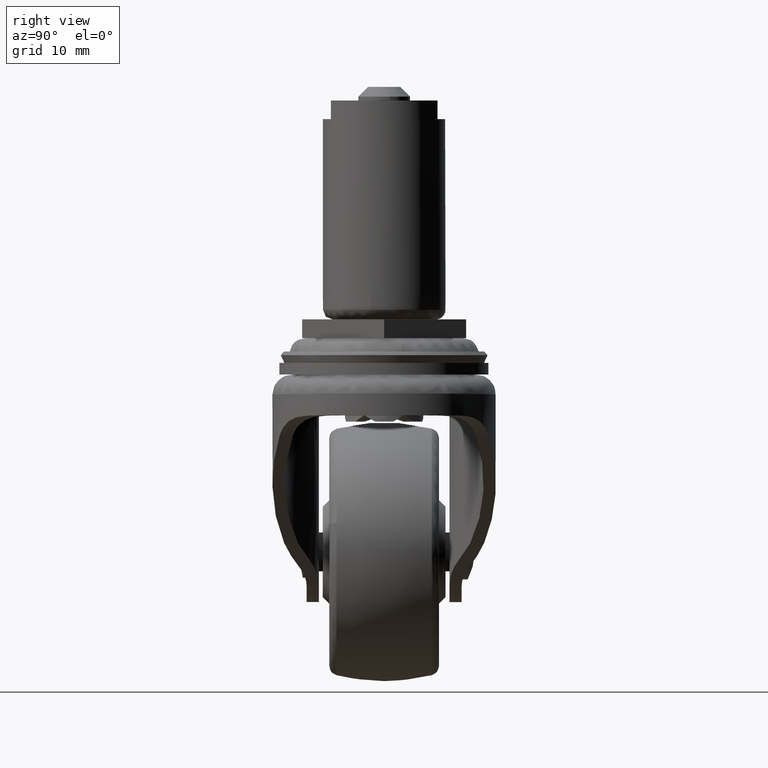
[diagram: clean part render]
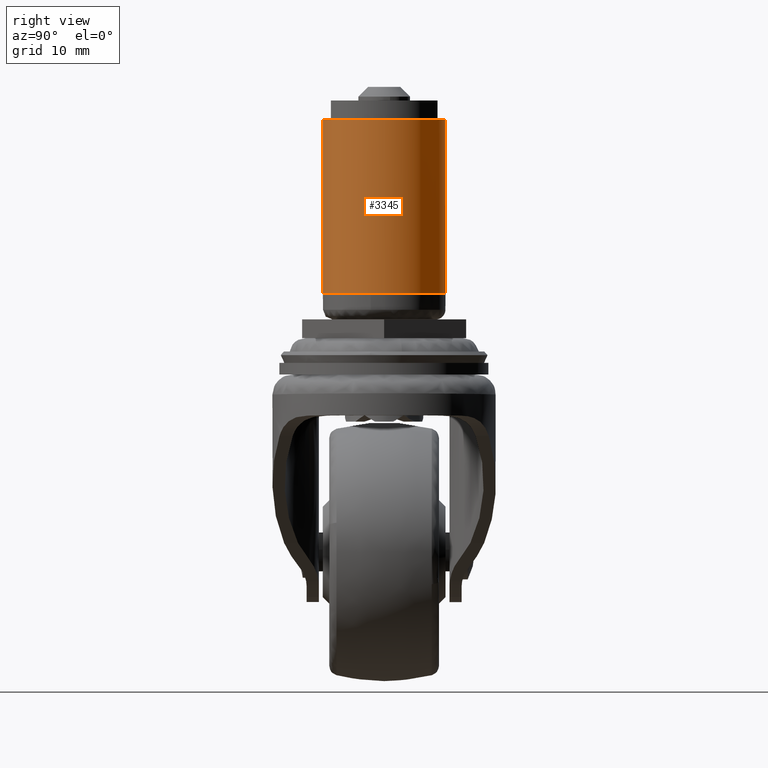
[diagram: same view with one face highlighted and labeled with its STEP entity id]
A machine part, right view. The second image highlights one B-rep face of the part: STEP entity #3345.
In plain terms, the highlighted face is a freeform B-spline surface patch.
Its self-contained STEP definition (entity closure, byte-faithful):
#3243=CARTESIAN_POINT('',(-1.121325229239206,9.433590500454830,31.675000000000011));
#3244=CARTESIAN_POINT('',(-0.851339922060788,9.465682346761753,31.675000000000004));
#3245=CARTESIAN_POINT('',(-0.579961125581141,9.482280585007734,31.675000000000001));
#3246=CARTESIAN_POINT('',(8.902319459426593,10.062241710588875,31.675000000000008));
#3247=CARTESIAN_POINT('',(9.482280585007734,0.579961125581141,31.675000000000001));
#3248=CARTESIAN_POINT('',(10.062241710588875,-8.902319459426593,31.675000000000008));
#3249=CARTESIAN_POINT('',(0.579961125581141,-9.482280585007734,31.675000000000001));
#3250=CARTESIAN_POINT('',(-1.121325229239206,9.433590500454830,3.308125000000000));
#3251=CARTESIAN_POINT('',(-0.851339922060788,9.465682346761753,3.308125000000000));
#3252=CARTESIAN_POINT('',(-0.579961125581141,9.482280585007734,3.308125000000000));
#3253=CARTESIAN_POINT('',(8.902319459426593,10.062241710588875,3.308125000000000));
#3254=CARTESIAN_POINT('',(9.482280585007734,0.579961125581141,3.308125000000000));
#3255=CARTESIAN_POINT('',(10.062241710588875,-8.902319459426593,3.308125000000000));
#3256=CARTESIAN_POINT('',(0.579961125581141,-9.482280585007734,3.308125000000000));
#3264=(BOUNDED_SURFACE()B_SPLINE_SURFACE(2,1,((#3243,#3250),(#3244,#3251),(#3245,#3252),(#3246,#3253),(#3247,#3254),(#3248,#3255),(#3249,#3256)),.UNSPECIFIED.,.F.,.F.,.U.)B_SPLINE_SURFACE_WITH_KNOTS((3,2,2,3),(2,2),(0.0,0.629604614807105,16.369719984984709,32.109835355162318),(0.0,28.366875000000011),.UNSPECIFIED.)GEOMETRIC_REPRESENTATION_ITEM()RATIONAL_B_SPLINE_SURFACE(((0.977505800795127,0.977505800795127),(0.988284271247462,0.988284271247462),(1.0,1.0),(0.707106781186548,0.707106781186548),(1.0,1.0),(0.707106781186548,0.707106781186548),(1.0,1.0)))REPRESENTATION_ITEM('')SURFACE());
#3265=CARTESIAN_POINT('',(-1.121325229317182,9.433590500445563,31.0));
#3266=VERTEX_POINT('',#3265);
#3267=CARTESIAN_POINT('',(9.500000000000000,0.0,31.0));
#3268=VERTEX_POINT('',#3267);
#3269=CARTESIAN_POINT('',(-1.121325229317183,9.433590500445563,30.999999999999996));
#3270=CARTESIAN_POINT('',(-0.562629136771947,9.500000000000002,31.0));
#3271=CARTESIAN_POINT('',(0.0,9.500000000000000,31.0));
#3272=CARTESIAN_POINT('',(9.500000000000000,9.500000000000000,31.000000000000007));
#3273=CARTESIAN_POINT('',(9.500000000000000,0.0,31.0));
#3281=(BOUNDED_CURVE()B_SPLINE_CURVE(2,(#3269,#3270,#3271,#3272,#3273),.UNSPECIFIED.,.F.,.U.)B_SPLINE_CURVE_WITH_KNOTS((3,2,3),(0.229562473512850,0.250000000000000,0.500000000000000),.UNSPECIFIED.)CURVE()GEOMETRIC_REPRESENTATION_ITEM()RATIONAL_B_SPLINE_CURVE((0.956026754182409,0.976055948330374,1.0,0.707106781186548,1.0))REPRESENTATION_ITEM(''));
#3282=EDGE_CURVE('',#3266,#3268,#3281,.T.);
#3283=ORIENTED_EDGE('',*,*,#3282,.T.);
#3284=CARTESIAN_POINT('',(0.579961125677197,-9.482280585001860,31.0));
#3285=VERTEX_POINT('',#3284);
#3286=CARTESIAN_POINT('',(9.500000000000000,0.0,31.0));
#3287=CARTESIAN_POINT('',(9.500000000000000,-8.936707635422685,31.000000000000004));
#3288=CARTESIAN_POINT('',(0.579961125677197,-9.482280585001858,31.0));
#3296=(BOUNDED_CURVE()B_SPLINE_CURVE(2,(#3286,#3287,#3288),.UNSPECIFIED.,.F.,.U.)B_SPLINE_CURVE_WITH_KNOTS((3,3),(0.500000000000000,0.739332962238472),.UNSPECIFIED.)CURVE()GEOMETRIC_REPRESENTATION_ITEM()RATIONAL_B_SPLINE_CURVE((1.0,0.719603993287262,0.976072041665709))REPRESENTATION_ITEM(''));
#3297=EDGE_CURVE('',#3268,#3285,#3296,.T.);
#3298=ORIENTED_EDGE('',*,*,#3297,.T.);
#3299=CARTESIAN_POINT('',(0.579961125677197,-9.482280585001860,3.999999999999999));
#3300=VERTEX_POINT('',#3299);
#3301=CARTESIAN_POINT('',(0.579961125677197,-9.482280585001860,31.0));
#3302=CARTESIAN_POINT('',(0.579961125677197,-9.482280585001860,3.999999999999999));
#3303=QUASI_UNIFORM_CURVE('',1,(#3301,#3302),.UNSPECIFIED.,.F.,.U.);
#3304=EDGE_CURVE('',#3285,#3300,#3303,.T.);
#3305=ORIENTED_EDGE('',*,*,#3304,.T.);
#3306=CARTESIAN_POINT('',(9.500000000000000,0.0,4.0));
#3307=VERTEX_POINT('',#3306);
#3308=CARTESIAN_POINT('',(9.500000000000000,0.0,4.0));
#3309=CARTESIAN_POINT('',(9.500000000000000,-8.936707635422685,4.0));
#3310=CARTESIAN_POINT('',(0.579961125677197,-9.482280585001858,3.999999999999999));
#3318=(BOUNDED_CURVE()B_SPLINE_CURVE(2,(#3308,#3309,#3310),.UNSPECIFIED.,.F.,.U.)B_SPLINE_CURVE_WITH_KNOTS((3,3),(0.500000000000000,0.739332962238472),.UNSPECIFIED.)CURVE()GEOMETRIC_REPRESENTATION_ITEM()RATIONAL_B_SPLINE_CURVE((1.0,0.719603993287262,0.976072041665709))REPRESENTATION_ITEM(''));
#3319=EDGE_CURVE('',#3307,#3300,#3318,.T.);
#3320=ORIENTED_EDGE('',*,*,#3319,.F.);
#3321=CARTESIAN_POINT('',(-1.121325229317182,9.433590500445563,3.999999999999999));
#3322=VERTEX_POINT('',#3321);
#3323=CARTESIAN_POINT('',(-1.121325229317183,9.433590500445563,3.999999999999999));
#3324=CARTESIAN_POINT('',(-0.562629136771947,9.500000000000002,4.000000000000001));
#3325=CARTESIAN_POINT('',(0.0,9.500000000000000,4.0));
#3326=CARTESIAN_POINT('',(9.500000000000000,9.500000000000000,4.000000000000000));
#3327=CARTESIAN_POINT('',(9.500000000000000,0.0,4.0));
#3335=(BOUNDED_CURVE()B_SPLINE_CURVE(2,(#3323,#3324,#3325,#3326,#3327),.UNSPECIFIED.,.F.,.U.)B_SPLINE_CURVE_WITH_KNOTS((3,2,3),(0.229562473512850,0.250000000000000,0.500000000000000),.UNSPECIFIED.)CURVE()GEOMETRIC_REPRESENTATION_ITEM()RATIONAL_B_SPLINE_CURVE((0.956026754182409,0.976055948330374,1.0,0.707106781186548,1.0))REPRESENTATION_ITEM(''));
#3336=EDGE_CURVE('',#3322,#3307,#3335,.T.);
#3337=ORIENTED_EDGE('',*,*,#3336,.F.);
#3338=CARTESIAN_POINT('',(-1.121325229317182,9.433590500445563,31.0));
#3339=CARTESIAN_POINT('',(-1.121325229317182,9.433590500445563,3.999999999999999));
#3340=QUASI_UNIFORM_CURVE('',1,(#3338,#3339),.UNSPECIFIED.,.F.,.U.);
#3341=EDGE_CURVE('',#3266,#3322,#3340,.T.);
#3342=ORIENTED_EDGE('',*,*,#3341,.F.);
#3343=EDGE_LOOP('',(#3283,#3298,#3305,#3320,#3337,#3342));
#3344=FACE_OUTER_BOUND('',#3343,.T.);
#3345=ADVANCED_FACE('',(#3344),#3264,.T.);